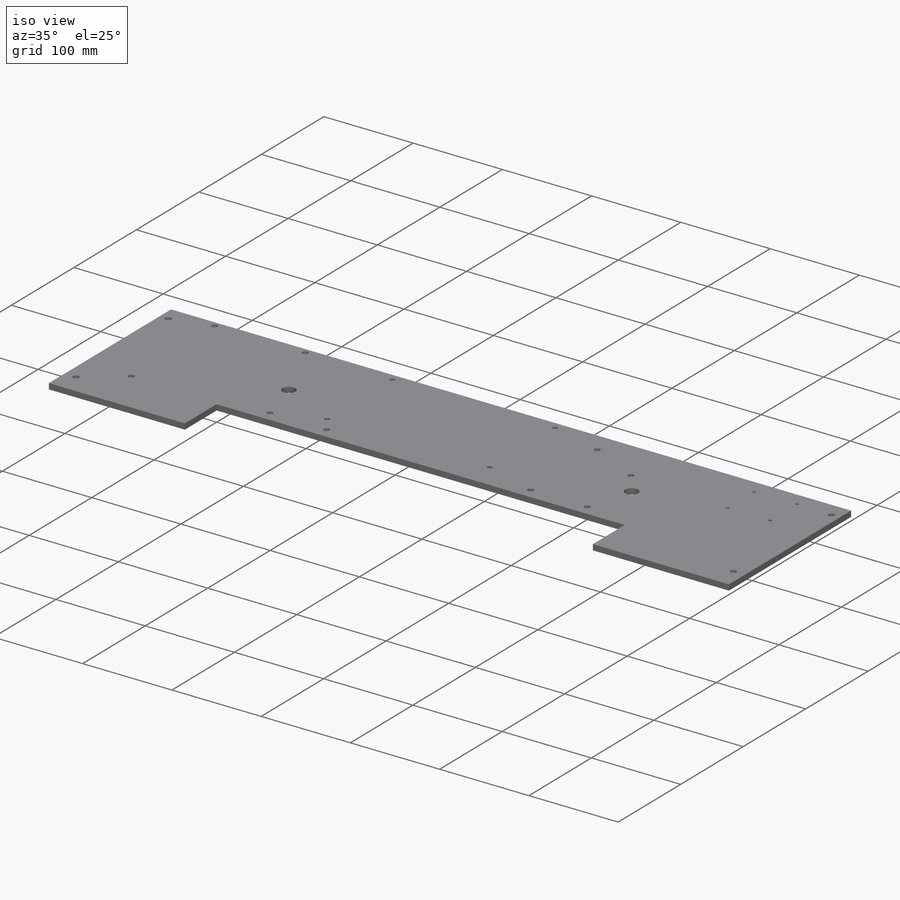
[diagram: iso view]
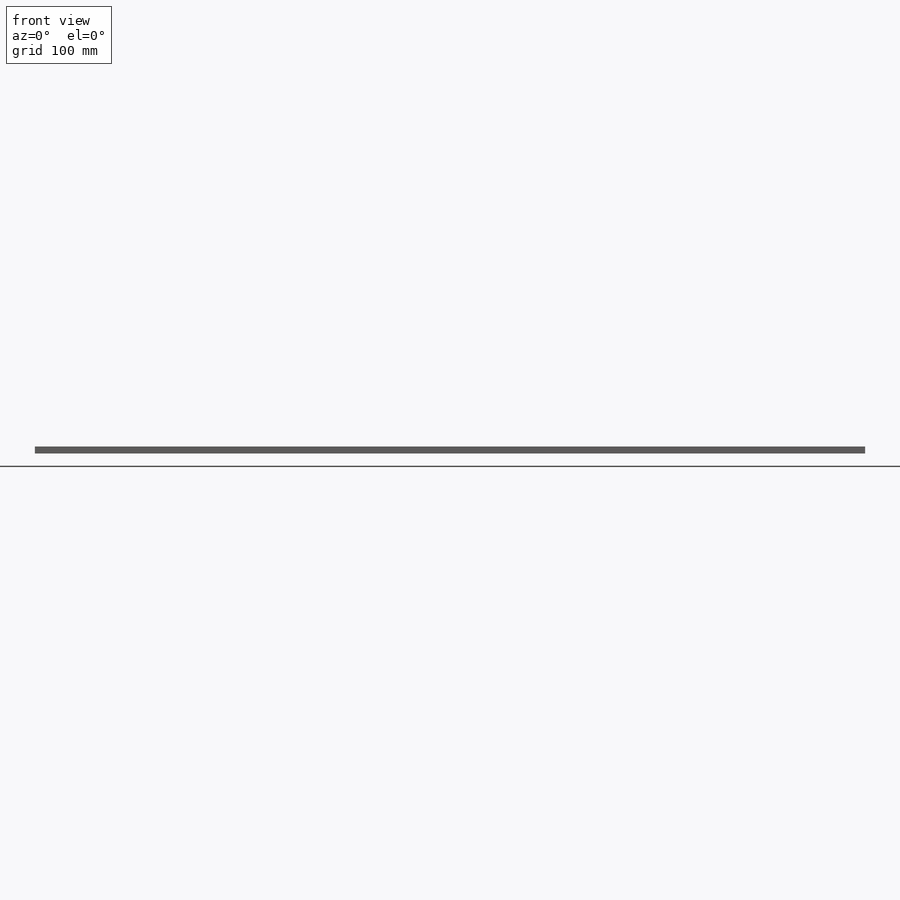
[diagram: front view]
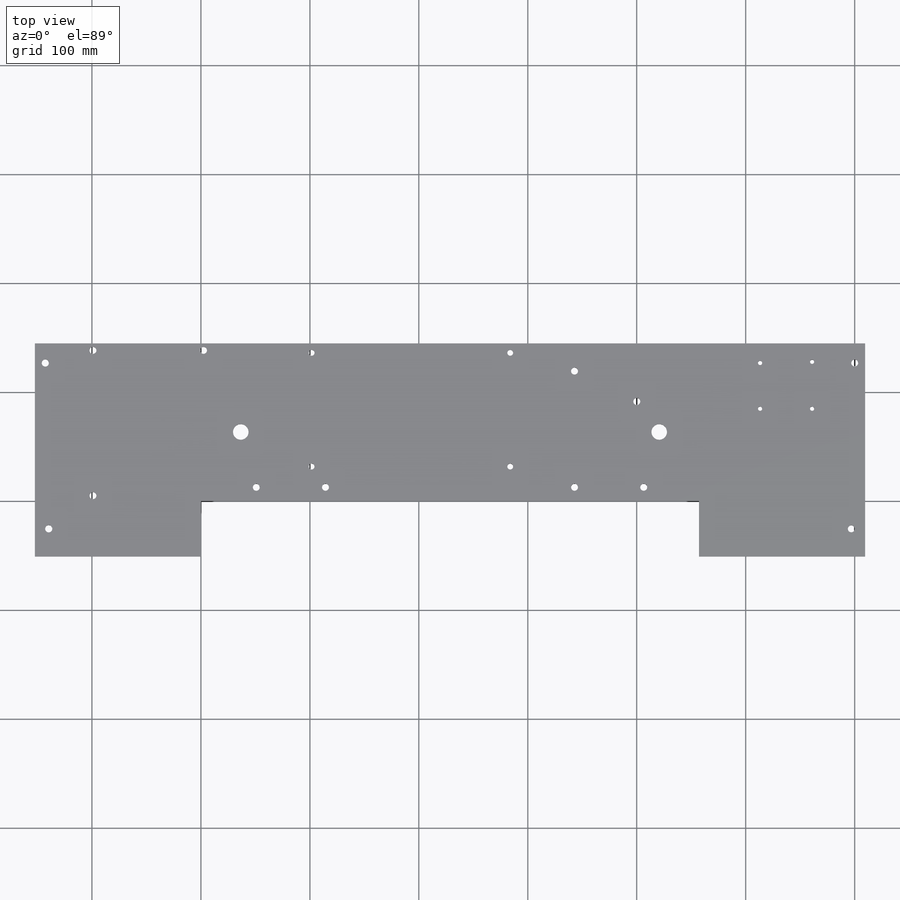
[diagram: top view]
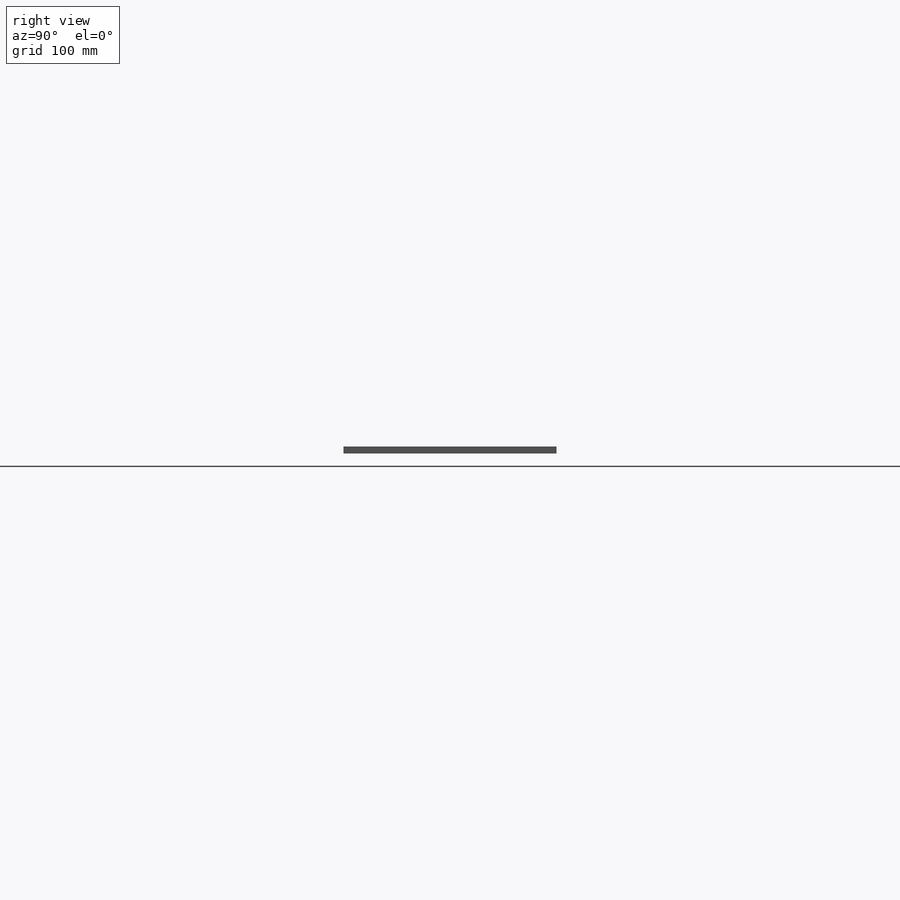
[diagram: right view]
SOLIDWORKS PART (.sldprt)
format: sldprt  version: not decoded by parser v0  size: 363,520 bytes
history: native  units: mm
features: sketch x3, cut_extrude x2, material x1, extrude x1 (+13 scaffold rows collapsed)
feature tree (20):
  scaffold x13  (default folders/planes/origin — collapsed)
  material  "Material <not specified>"
  sketch  "Sketch1"  dims[D1=195.58mm D2=195.58mm D3=457.2mm D4=762.0mm D5=152.4mm D6=152.4mm D7=144.78mm D8=50.8mm]
  extrude  "Boss-Extrude1"  Depth=6.35mm
  sketch  "Sketch3"  dims[c1.D1=6.604mm c1.D2=6.604mm c1.D3=6.604mm c1.D4=6.35mm c1.D5=10.033mm c1.D6=10.033mm c1.D7=10.033mm c1.D8=10.033mm c1.D9=10.033mm c1.D10=10.033mm c2.D7=6.604mm c2.D8=6.604mm c2.D9=6.604mm c2.D10=6.35mm c2.D11=10.033mm c2.D12=6.35mm c2.D13=6.35mm c2.D14=6.35mm c2.D15=6.35mm c3.D13=6.35mm c3.D14=6.35mm c3.D15=6.35mm c3.D16=14.2875mm c3.D17=14.2875mm c3.D18=14.2875mm c3.D20=6.35mm c3.D21=6.35mm c3.D22=6.35mm c3.D23=6.35mm c3.D24=6.35mm c3.D25=6.35mm c3.D26=3.81mm c3.D27=4.826mm c3.D28=4.826mm c3.D29=3.81mm c3.D30=3.81mm c3.D31=3.81mm c3.D32=3.81mm c3.D33=3.81mm c4.D32=3.81mm c4.D33=3.81mm c5.D32=3.81mm c5.D33=3.81mm c5.D34=3.81mm c5.D35=3.81mm c5.D36=3.81mm c5.D37=3.81mm c5.D38=14.2875mm c5.D39=14.2875mm c5.D40=14.2875mm c5.D2=12.7mm c5.D3=25.4mm c5.D5=53.2892mm c5.D6=55.8292mm c5.D8=48.387mm c5.D9=5.0292mm c6.D8=9.525mm c6.D9=~17.96288mm c6.D11=6.4008mm c6.D12=53.2892mm c6.D14=154.813mm c6.D15=6.4008mm c6.D17=188.976mm c6.D18=63.5mm c6.D19=50.8mm c6.D21=9.525mm c6.D22=~17.96288mm c6.D24=12.7mm c6.D25=25.4mm c6.D27=48.641mm c6.D28=16.9164mm c6.D30=59.9694mm c6.D31=96.393mm c6.D33=48.641mm c6.D34=59.9694mm c6.D36=~17.96288mm c6.D37=96.393mm c6.D39=81.28mm c6.D40=188.976mm]
  cut_extrude  "Cut-Extrude1"  Depth=7.62mm
  sketch  "Sketch5"  dims[c1.D5=14.2875mm c1.D7=14.2875mm c1.D1=14.2875mm c1.D9=6.35mm c1.D10=6.35mm c1.D11=6.35mm c1.D12=6.35mm c1.D13=6.35mm c1.D14=6.35mm c1.D15=6.35mm c2.D13=6.35mm c2.D16=6.35mm c2.D9=6.35mm c2.D10=6.35mm c2.D11=6.35mm c2.D12=6.35mm c3.D13=6.35mm c3.D14=6.35mm c3.D15=6.35mm c3.D16=6.35mm c3.D17=6.35mm c3.D18=6.35mm c3.D19=6.35mm c3.D20=6.35mm c3.D21=5.334mm c3.D22=5.334mm c3.D23=5.334mm c3.D24=5.334mm c3.D25=5.334mm c3.D26=5.334mm c3.D27=5.334mm c3.D28=5.334mm c3.D29=5.334mm c3.D30=5.334mm c3.D31=5.334mm c3.D32=5.334mm c3.D33=6.35mm c3.D34=6.35mm c3.D35=6.35mm c3.D36=6.35mm c3.D37=6.35mm c3.D38=6.35mm c3.D39=6.35mm c3.D1=368.3mm c3.D2=~7.14375mm c3.D3=~8.60425mm c4.D1=50.8mm c4.D2=50.8mm c4.D3=196.85mm c4.D4=7.874mm c4.D5=7.874mm c4.D6=368.3mm c4.D7=14.224mm c5.D1=7.874mm c5.D2=7.874mm c5.D7=44.45mm c5.D8=144.78mm c5.D10=6.35mm c5.D11=12.7mm c5.D13=203.2mm c5.D14=53.34mm c5.D15=12.7mm c5.D16=25.4mm c6.D10=12.7mm c6.D11=53.34mm c6.D13=6.35mm c6.D14=12.7mm c6.D16=25.4mm c6.D17=69.85mm c6.D19=12.7mm c6.D20=69.85mm c6.D22=8.636mm c6.D23=128.8796mm c6.D25=128.8796mm c6.D26=113.03mm c6.D28=8.636mm c6.D29=311.15mm c6.D31=113.03mm c6.D32=311.15mm c6.D34=12.7mm c6.D35=298.45mm c6.D37=12.7mm c6.D38=6.35mm c6.D39=42.037mm]
  cut_extrude  "Cut-Extrude2"  Depth=7.62mm
decode coverage: 6 of 6 modeling features carry decoded parameters
note: ~ marks probable driven/reference dimensions
note: suppression state not decoded; provenance and decode notes live in map.json
